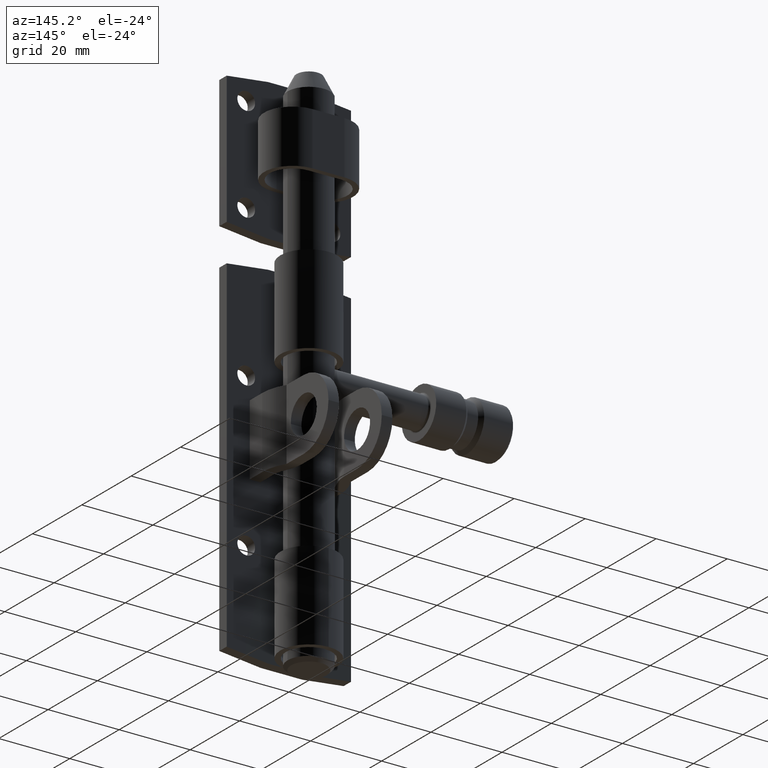
[diagram: clean part render]
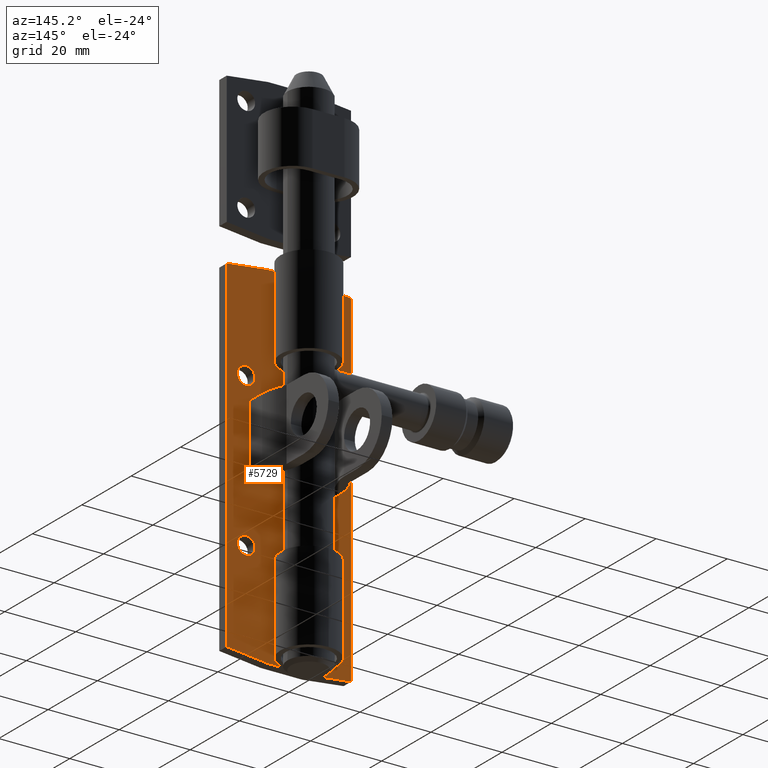
[diagram: same view with one face highlighted and labeled with its STEP entity id]
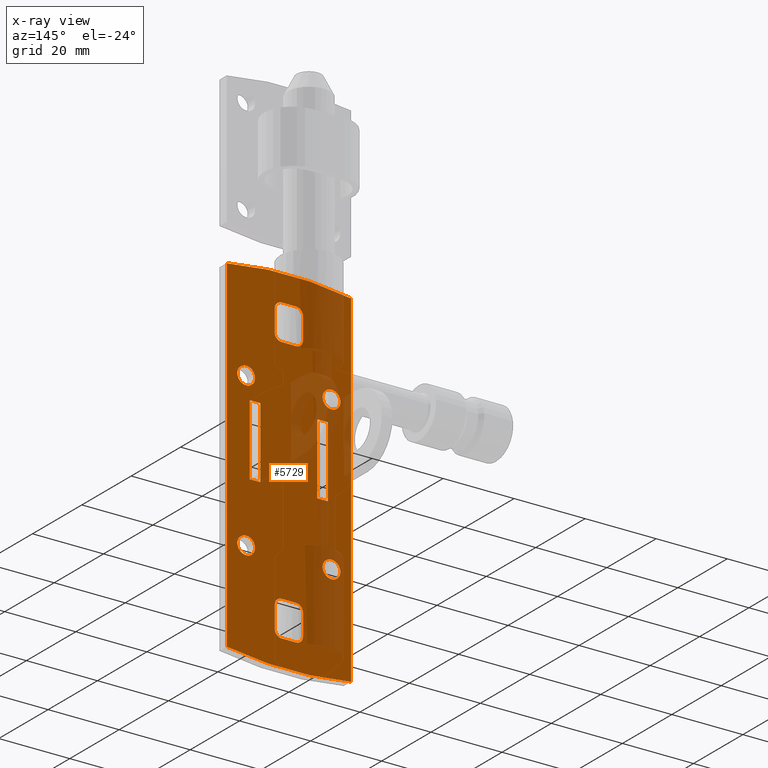
[diagram: x-ray of the same camera — body ghosted, the highlighted face saturated]
A machine part, auxiliary view. The second image highlights one B-rep face of the part: STEP entity #5729.
The next image is the same camera in x-ray: the body ghosted, the highlighted face saturated — about 24% of this face is hidden behind the body in this view.
In plain terms, the highlighted planar face has unit normal (0, -1, 0).
Its self-contained STEP definition (entity closure, byte-faithful):
#15 = FACE_BOUND ( 'NONE', #10693, .T. ) ;
#74 = DIRECTION ( 'NONE',  ( 0.000000000000000000, 1.000000000000000000, 0.000000000000000000 ) ) ;
#124 = DIRECTION ( 'NONE',  ( 0.000000000000000000, 0.000000000000000000, -1.000000000000000000 ) ) ;
#137 = EDGE_CURVE ( 'NONE', #7631, #14249, #5132, .T. ) ;
#179 = CARTESIAN_POINT ( 'NONE',  ( 11.00000000000000000, 6.245004513516503568E-16, -4.499999999999999112 ) ) ;
#214 = EDGE_CURVE ( 'NONE', #4328, #6896, #13978, .T. ) ;
#221 = DIRECTION ( 'NONE',  ( -0.000000000000000000, -1.000000000000000000, 0.000000000000000000 ) ) ;
#261 = EDGE_LOOP ( 'NONE', ( #7562 ) ) ;
#313 = ORIENTED_EDGE ( 'NONE', *, *, #7913, .F. ) ;
#386 = FACE_BOUND ( 'NONE', #6608, .T. ) ;
#401 = CARTESIAN_POINT ( 'NONE',  ( 11.00000000000000000, -2.151057110211241192E-15, 15.50000000000000178 ) ) ;
#413 = EDGE_CURVE ( 'NONE', #7470, #1226, #11636, .T. ) ;
#415 = EDGE_CURVE ( 'NONE', #13340, #6896, #13559, .T. ) ;
#509 = EDGE_CURVE ( 'NONE', #13071, #13973, #869, .T. ) ;
#568 = FACE_BOUND ( 'NONE', #14576, .T. ) ;
#588 = CARTESIAN_POINT ( 'NONE',  ( -12.00000000000000355, 0.000000000000000000, -18.99999999999999645 ) ) ;
#678 = CARTESIAN_POINT ( 'NONE',  ( -11.00000000000000000, 0.000000000000000000, -4.499999999999997335 ) ) ;
#710 = EDGE_CURVE ( 'NONE', #2548, #13071, #14469, .T. ) ;
#717 = ORIENTED_EDGE ( 'NONE', *, *, #214, .T. ) ;
#739 = VECTOR ( 'NONE', #9292, 1000.000000000000000 ) ;
#861 = CIRCLE ( 'NONE', #11522, 2.000000000000001776 ) ;
#869 = LINE ( 'NONE', #13337, #9509 ) ;
#913 = EDGE_LOOP ( 'NONE', ( #10696, #6861, #11272, #4243 ) ) ;
#1009 = EDGE_CURVE ( 'NONE', #5861, #4229, #5774, .T. ) ;
#1015 = CARTESIAN_POINT ( 'NONE',  ( 17.49999999999998579, 0.000000000000000000, -48.50000000000000000 ) ) ;
#1042 = VECTOR ( 'NONE', #7263, 1000.000000000000000 ) ;
#1197 = CARTESIAN_POINT ( 'NONE',  ( 2.000000000000000000, 0.000000000000000000, 40.49999999999999289 ) ) ;
#1226 = VERTEX_POINT ( 'NONE', #4517 ) ;
#1288 = LINE ( 'NONE', #14545, #2373 ) ;
#1408 = VERTEX_POINT ( 'NONE', #588 ) ;
#1486 = CARTESIAN_POINT ( 'NONE',  ( 4.000000000000000000, 0.000000000000000000, -40.49999999999999289 ) ) ;
#1547 = EDGE_CURVE ( 'NONE', #7603, #7603, #11221, .T. ) ;
#1552 = CARTESIAN_POINT ( 'NONE',  ( -1.999999999999999112, 0.000000000000000000, 34.50000000000000000 ) ) ;
#1612 = CIRCLE ( 'NONE', #6928, 102.8333333333333570 ) ;
#1657 = PLANE ( 'NONE',  #1825 ) ;
#1675 = ORIENTED_EDGE ( 'NONE', *, *, #6579, .T. ) ;
#1709 = AXIS2_PLACEMENT_3D ( 'NONE', #6218, #7493, #9754 ) ;
#1742 = CARTESIAN_POINT ( 'NONE',  ( 8.000000000000000000, 0.000000000000000000, 15.50000000000000000 ) ) ;
#1789 = ORIENTED_EDGE ( 'NONE', *, *, #7777, .F. ) ;
#1825 = AXIS2_PLACEMENT_3D ( 'NONE', #5046, #12936, #14190 ) ;
#1857 = ORIENTED_EDGE ( 'NONE', *, *, #137, .T. ) ;
#1910 = CARTESIAN_POINT ( 'NONE',  ( 4.000000000000000000, 0.000000000000000000, 40.49999999999999289 ) ) ;
#2022 = AXIS2_PLACEMENT_3D ( 'NONE', #4748, #3682, #9144 ) ;
#2054 = CARTESIAN_POINT ( 'NONE',  ( -1.999999999999999112, 0.000000000000000000, -32.50000000000000000 ) ) ;
#2111 = CIRCLE ( 'NONE', #9549, 102.8333333333333570 ) ;
#2182 = ORIENTED_EDGE ( 'NONE', *, *, #8677, .F. ) ;
#2373 = VECTOR ( 'NONE', #12354, 1000.000000000000000 ) ;
#2518 = VERTEX_POINT ( 'NONE', #7837 ) ;
#2548 = VERTEX_POINT ( 'NONE', #7983 ) ;
#2690 = FACE_BOUND ( 'NONE', #14377, .T. ) ;
#2730 = CARTESIAN_POINT ( 'NONE',  ( -11.99999999999997513, 0.000000000000000000, 21.50000000000000355 ) ) ;
#2748 = CARTESIAN_POINT ( 'NONE',  ( 17.49999999999995737, 0.000000000000000000, 48.49999999999998579 ) ) ;
#2811 = VECTOR ( 'NONE', #7614, 1000.000000000000000 ) ;
#2846 = VECTOR ( 'NONE', #8218, 1000.000000000000000 ) ;
#3008 = VECTOR ( 'NONE', #4920, 1000.000000000000000 ) ;
#3070 = AXIS2_PLACEMENT_3D ( 'NONE', #8553, #7363, #6182 ) ;
#3234 = CARTESIAN_POINT ( 'NONE',  ( -11.00000000000000000, 6.245004513516503568E-16, -4.499999999999999112 ) ) ;
#3313 = CARTESIAN_POINT ( 'NONE',  ( -1.999999999999999112, 0.000000000000000000, -34.50000000000000000 ) ) ;
#3320 = DIRECTION ( 'NONE',  ( -0.000000000000000000, -1.387778780781445676E-16, 1.000000000000000000 ) ) ;
#3451 = VERTEX_POINT ( 'NONE', #7236 ) ;
#3491 = CARTESIAN_POINT ( 'NONE',  ( -1.999999999999999112, 0.000000000000000000, 40.49999999999999289 ) ) ;
#3522 = CARTESIAN_POINT ( 'NONE',  ( 8.429652134130940764E-15, 0.000000000000000000, -52.83333333333337123 ) ) ;
#3682 = DIRECTION ( 'NONE',  ( -0.000000000000000000, -1.000000000000000000, 0.000000000000000000 ) ) ;
#3776 = DIRECTION ( 'NONE',  ( 0.000000000000000000, 0.000000000000000000, -1.000000000000000000 ) ) ;
#3802 = VERTEX_POINT ( 'NONE', #401 ) ;
#3856 = EDGE_CURVE ( 'NONE', #4068, #4068, #13141, .T. ) ;
#3939 = CARTESIAN_POINT ( 'NONE',  ( -11.00000000000000000, 0.000000000000000000, 15.50000000000000000 ) ) ;
#3970 = ORIENTED_EDGE ( 'NONE', *, *, #14615, .F. ) ;
#4026 = DIRECTION ( 'NONE',  ( -0.000000000000000000, -1.000000000000000000, 0.000000000000000000 ) ) ;
#4042 = EDGE_CURVE ( 'NONE', #12360, #12360, #5371, .T. ) ;
#4068 = VERTEX_POINT ( 'NONE', #9150 ) ;
#4229 = VERTEX_POINT ( 'NONE', #6153 ) ;
#4243 = ORIENTED_EDGE ( 'NONE', *, *, #12251, .T. ) ;
#4250 = DIRECTION ( 'NONE',  ( -1.000000000000000000, -0.000000000000000000, -0.000000000000000000 ) ) ;
#4328 = VERTEX_POINT ( 'NONE', #2054 ) ;
#4505 = CARTESIAN_POINT ( 'NONE',  ( 4.000000000000000000, 0.000000000000000000, -34.50000000000000000 ) ) ;
#4517 = CARTESIAN_POINT ( 'NONE',  ( 4.000000000000000000, 0.000000000000000000, 34.50000000000000000 ) ) ;
#4526 = ORIENTED_EDGE ( 'NONE', *, *, #6946, .F. ) ;
#4574 = LINE ( 'NONE', #13458, #10214 ) ;
#4616 = CARTESIAN_POINT ( 'NONE',  ( 2.000000000000000000, 0.000000000000000000, -34.50000000000000000 ) ) ;
#4748 = CARTESIAN_POINT ( 'NONE',  ( 2.000000000000000000, 0.000000000000000000, 34.50000000000000000 ) ) ;
#4759 = EDGE_CURVE ( 'NONE', #9510, #9603, #5677, .T. ) ;
#4795 = ORIENTED_EDGE ( 'NONE', *, *, #10069, .F. ) ;
#4826 = CARTESIAN_POINT ( 'NONE',  ( -3.999999999999999112, 0.000000000000000000, -34.50000000000000000 ) ) ;
#4908 = VECTOR ( 'NONE', #5910, 1000.000000000000000 ) ;
#4920 = DIRECTION ( 'NONE',  ( 1.000000000000000000, -0.000000000000000000, -0.000000000000000000 ) ) ;
#5034 = CARTESIAN_POINT ( 'NONE',  ( 17.49999999999998579, 0.000000000000000000, -48.50000000000000000 ) ) ;
#5046 = CARTESIAN_POINT ( 'NONE',  ( 8.429652134130940764E-15, 0.000000000000000000, 52.83333333333337123 ) ) ;
#5072 = CARTESIAN_POINT ( 'NONE',  ( -3.999999999999999112, 0.000000000000000000, 34.50000000000000000 ) ) ;
#5132 = CIRCLE ( 'NONE', #13304, 2.000000000000001776 ) ;
#5155 = ORIENTED_EDGE ( 'NONE', *, *, #4759, .T. ) ;
#5202 = ORIENTED_EDGE ( 'NONE', *, *, #1009, .T. ) ;
#5293 = VECTOR ( 'NONE', #8256, 1000.000000000000000 ) ;
#5360 = ORIENTED_EDGE ( 'NONE', *, *, #415, .F. ) ;
#5371 = CIRCLE ( 'NONE', #8526, 2.499999999999998668 ) ;
#5404 = VERTEX_POINT ( 'NONE', #14663 ) ;
#5591 = ORIENTED_EDGE ( 'NONE', *, *, #509, .T. ) ;
#5593 = CARTESIAN_POINT ( 'NONE',  ( 11.99999999999998934, 0.000000000000000000, 21.50000000000000000 ) ) ;
#5625 = CIRCLE ( 'NONE', #2022, 2.000000000000001776 ) ;
#5672 = AXIS2_PLACEMENT_3D ( 'NONE', #2730, #10449, #10592 ) ;
#5677 = CIRCLE ( 'NONE', #8040, 2.000000000000001776 ) ;
#5689 = VERTEX_POINT ( 'NONE', #678 ) ;
#5729 = ADVANCED_FACE ( 'NONE', ( #568, #6209, #386, #11863, #2690, #15, #14513, #11500, #8506 ), #1657, .F. ) ;
#5774 = LINE ( 'NONE', #14482, #7552 ) ;
#5818 = LINE ( 'NONE', #9612, #3008 ) ;
#5861 = VERTEX_POINT ( 'NONE', #13564 ) ;
#5910 = DIRECTION ( 'NONE',  ( 0.000000000000000000, 0.000000000000000000, 1.000000000000000000 ) ) ;
#5949 = CARTESIAN_POINT ( 'NONE',  ( -3.999999999999999112, 0.000000000000000000, -42.49999999999999289 ) ) ;
#5986 = CARTESIAN_POINT ( 'NONE',  ( 8.429652134130940764E-15, 0.000000000000000000, 52.83333333333337123 ) ) ;
#6016 = LINE ( 'NONE', #5949, #739 ) ;
#6078 = ORIENTED_EDGE ( 'NONE', *, *, #6289, .F. ) ;
#6153 = CARTESIAN_POINT ( 'NONE',  ( 11.00000000000000000, 0.000000000000000000, -4.499999999999997335 ) ) ;
#6182 = DIRECTION ( 'NONE',  ( 0.000000000000000000, 0.000000000000000000, 1.000000000000000000 ) ) ;
#6209 = FACE_OUTER_BOUND ( 'NONE', #913, .T. ) ;
#6218 = CARTESIAN_POINT ( 'NONE',  ( -1.999999999999999112, 0.000000000000000000, -40.49999999999999289 ) ) ;
#6223 = VERTEX_POINT ( 'NONE', #8372 ) ;
#6249 = VERTEX_POINT ( 'NONE', #2748 ) ;
#6289 = EDGE_CURVE ( 'NONE', #9510, #12371, #11487, .T. ) ;
#6313 = LINE ( 'NONE', #8706, #11970 ) ;
#6347 = CARTESIAN_POINT ( 'NONE',  ( 4.000000000000000000, 0.000000000000000000, 32.50000000000000000 ) ) ;
#6579 = EDGE_CURVE ( 'NONE', #13750, #1226, #5625, .T. ) ;
#6608 = EDGE_LOOP ( 'NONE', ( #1789 ) ) ;
#6695 = EDGE_LOOP ( 'NONE', ( #4526, #5202, #9394, #2182 ) ) ;
#6704 = DIRECTION ( 'NONE',  ( 0.000000000000000000, 0.000000000000000000, 1.000000000000000000 ) ) ;
#6766 = ORIENTED_EDGE ( 'NONE', *, *, #4042, .F. ) ;
#6787 = DIRECTION ( 'NONE',  ( 0.000000000000000000, 0.000000000000000000, 1.000000000000000000 ) ) ;
#6806 = DIRECTION ( 'NONE',  ( -0.000000000000000000, -1.000000000000000000, 0.000000000000000000 ) ) ;
#6861 = ORIENTED_EDGE ( 'NONE', *, *, #7459, .T. ) ;
#6870 = DIRECTION ( 'NONE',  ( 0.000000000000000000, 1.000000000000000000, 0.000000000000000000 ) ) ;
#6896 = VERTEX_POINT ( 'NONE', #4826 ) ;
#6927 = DIRECTION ( 'NONE',  ( 0.000000000000000000, 0.000000000000000000, -1.000000000000000000 ) ) ;
#6928 = AXIS2_PLACEMENT_3D ( 'NONE', #5986, #10410, #3776 ) ;
#6946 = EDGE_CURVE ( 'NONE', #5861, #7747, #13749, .T. ) ;
#6986 = AXIS2_PLACEMENT_3D ( 'NONE', #3313, #6806, #13451 ) ;
#7016 = ORIENTED_EDGE ( 'NONE', *, *, #7582, .F. ) ;
#7060 = CARTESIAN_POINT ( 'NONE',  ( -3.999999999999999112, 0.000000000000000000, 32.50000000000000000 ) ) ;
#7177 = CARTESIAN_POINT ( 'NONE',  ( 11.99999999999998934, 0.000000000000000000, 24.00000000000000000 ) ) ;
#7236 = CARTESIAN_POINT ( 'NONE',  ( -17.50000000000002132, 0.000000000000000000, 48.50000000000000000 ) ) ;
#7263 = DIRECTION ( 'NONE',  ( -0.000000000000000000, -1.387778780781445676E-16, 1.000000000000000000 ) ) ;
#7286 = DIRECTION ( 'NONE',  ( 0.000000000000000000, 0.000000000000000000, -1.000000000000000000 ) ) ;
#7363 = DIRECTION ( 'NONE',  ( 0.000000000000000000, 1.000000000000000000, 0.000000000000000000 ) ) ;
#7459 = EDGE_CURVE ( 'NONE', #5404, #3451, #6313, .T. ) ;
#7466 = ORIENTED_EDGE ( 'NONE', *, *, #413, .F. ) ;
#7468 = CARTESIAN_POINT ( 'NONE',  ( -3.999999999999999112, 0.000000000000000000, 40.49999999999999289 ) ) ;
#7470 = VERTEX_POINT ( 'NONE', #1910 ) ;
#7493 = DIRECTION ( 'NONE',  ( -0.000000000000000000, -1.000000000000000000, 0.000000000000000000 ) ) ;
#7501 = EDGE_CURVE ( 'NONE', #7470, #8835, #10515, .T. ) ;
#7552 = VECTOR ( 'NONE', #12045, 1000.000000000000000 ) ;
#7562 = ORIENTED_EDGE ( 'NONE', *, *, #3856, .F. ) ;
#7582 = EDGE_CURVE ( 'NONE', #4328, #14487, #1288, .T. ) ;
#7586 = CARTESIAN_POINT ( 'NONE',  ( -1.999999999999999112, 0.000000000000000000, 32.50000000000000000 ) ) ;
#7603 = VERTEX_POINT ( 'NONE', #13738 ) ;
#7614 = DIRECTION ( 'NONE',  ( 1.000000000000000000, 0.000000000000000000, 0.000000000000000000 ) ) ;
#7631 = VERTEX_POINT ( 'NONE', #12643 ) ;
#7673 = ORIENTED_EDGE ( 'NONE', *, *, #9323, .F. ) ;
#7747 = VERTEX_POINT ( 'NONE', #1742 ) ;
#7777 = EDGE_CURVE ( 'NONE', #1408, #1408, #7791, .T. ) ;
#7791 = CIRCLE ( 'NONE', #3070, 2.499999999999998668 ) ;
#7837 = CARTESIAN_POINT ( 'NONE',  ( -1.999999999999999112, 0.000000000000000000, 42.49999999999999289 ) ) ;
#7913 = EDGE_CURVE ( 'NONE', #2548, #5689, #10982, .T. ) ;
#7927 = VECTOR ( 'NONE', #11888, 1000.000000000000000 ) ;
#7970 = EDGE_CURVE ( 'NONE', #5689, #13973, #4574, .T. ) ;
#7983 = CARTESIAN_POINT ( 'NONE',  ( -8.000000000000000000, 0.000000000000000000, -4.499999999999997335 ) ) ;
#8040 = AXIS2_PLACEMENT_3D ( 'NONE', #1552, #11682, #7286 ) ;
#8125 = VECTOR ( 'NONE', #13944, 1000.000000000000000 ) ;
#8200 = LINE ( 'NONE', #7060, #12240 ) ;
#8218 = DIRECTION ( 'NONE',  ( 0.000000000000000000, 0.000000000000000000, 1.000000000000000000 ) ) ;
#8256 = DIRECTION ( 'NONE',  ( -0.000000000000000000, -0.000000000000000000, -1.000000000000000000 ) ) ;
#8372 = CARTESIAN_POINT ( 'NONE',  ( -1.999999999999999112, 0.000000000000000000, -42.49999999999999289 ) ) ;
#8506 = FACE_BOUND ( 'NONE', #8542, .T. ) ;
#8526 = AXIS2_PLACEMENT_3D ( 'NONE', #5593, #74, #6704 ) ;
#8542 = EDGE_LOOP ( 'NONE', ( #7673, #11056, #7016, #717, #5360, #11216, #3970, #1857 ) ) ;
#8548 = CARTESIAN_POINT ( 'NONE',  ( -8.000000000000000000, 6.245004513516503568E-16, -4.499999999999999112 ) ) ;
#8553 = CARTESIAN_POINT ( 'NONE',  ( -12.00000000000000355, 0.000000000000000000, -21.49999999999999645 ) ) ;
#8677 = EDGE_CURVE ( 'NONE', #7747, #3802, #5818, .T. ) ;
#8706 = CARTESIAN_POINT ( 'NONE',  ( -17.50000000000002132, 0.000000000000000000, -48.50000000000000000 ) ) ;
#8792 = CIRCLE ( 'NONE', #8958, 2.000000000000001776 ) ;
#8835 = VERTEX_POINT ( 'NONE', #8910 ) ;
#8910 = CARTESIAN_POINT ( 'NONE',  ( 2.000000000000000000, 0.000000000000000000, 42.49999999999999289 ) ) ;
#8958 = AXIS2_PLACEMENT_3D ( 'NONE', #4616, #13638, #124 ) ;
#8979 = EDGE_CURVE ( 'NONE', #4229, #3802, #14122, .T. ) ;
#8997 = VERTEX_POINT ( 'NONE', #4505 ) ;
#9144 = DIRECTION ( 'NONE',  ( 0.000000000000000000, 0.000000000000000000, -1.000000000000000000 ) ) ;
#9150 = CARTESIAN_POINT ( 'NONE',  ( -11.99999999999997513, 0.000000000000000000, 24.00000000000000355 ) ) ;
#9292 = DIRECTION ( 'NONE',  ( -1.000000000000000000, -0.000000000000000000, -0.000000000000000000 ) ) ;
#9323 = EDGE_CURVE ( 'NONE', #8997, #14249, #11091, .T. ) ;
#9381 = ORIENTED_EDGE ( 'NONE', *, *, #7970, .F. ) ;
#9394 = ORIENTED_EDGE ( 'NONE', *, *, #8979, .T. ) ;
#9440 = CARTESIAN_POINT ( 'NONE',  ( -3.999999999999999112, 0.000000000000000000, 32.50000000000000000 ) ) ;
#9503 = LINE ( 'NONE', #13223, #2811 ) ;
#9509 = VECTOR ( 'NONE', #14403, 1000.000000000000000 ) ;
#9510 = VERTEX_POINT ( 'NONE', #5072 ) ;
#9549 = AXIS2_PLACEMENT_3D ( 'NONE', #3522, #6870, #10399 ) ;
#9603 = VERTEX_POINT ( 'NONE', #7586 ) ;
#9612 = CARTESIAN_POINT ( 'NONE',  ( 11.00000000000000000, -2.151057110211241192E-15, 15.50000000000000178 ) ) ;
#9715 = EDGE_CURVE ( 'NONE', #8997, #14487, #8792, .T. ) ;
#9733 = CIRCLE ( 'NONE', #1709, 2.000000000000001776 ) ;
#9754 = DIRECTION ( 'NONE',  ( 0.000000000000000000, 0.000000000000000000, -1.000000000000000000 ) ) ;
#9941 = EDGE_CURVE ( 'NONE', #2518, #12371, #861, .T. ) ;
#10012 = DIRECTION ( 'NONE',  ( 0.000000000000000000, 1.000000000000000000, 0.000000000000000000 ) ) ;
#10069 = EDGE_CURVE ( 'NONE', #2518, #8835, #9503, .T. ) ;
#10214 = VECTOR ( 'NONE', #3320, 1000.000000000000000 ) ;
#10399 = DIRECTION ( 'NONE',  ( 0.000000000000000000, 0.000000000000000000, 1.000000000000000000 ) ) ;
#10410 = DIRECTION ( 'NONE',  ( 0.000000000000000000, 1.000000000000000000, -0.000000000000000000 ) ) ;
#10449 = DIRECTION ( 'NONE',  ( 0.000000000000000000, 1.000000000000000000, 0.000000000000000000 ) ) ;
#10515 = CIRCLE ( 'NONE', #13629, 2.000000000000001776 ) ;
#10592 = DIRECTION ( 'NONE',  ( 0.000000000000000000, 0.000000000000000000, 1.000000000000000000 ) ) ;
#10693 = EDGE_LOOP ( 'NONE', ( #13094 ) ) ;
#10696 = ORIENTED_EDGE ( 'NONE', *, *, #14228, .T. ) ;
#10982 = LINE ( 'NONE', #3234, #11668 ) ;
#11056 = ORIENTED_EDGE ( 'NONE', *, *, #9715, .T. ) ;
#11075 = ORIENTED_EDGE ( 'NONE', *, *, #13059, .F. ) ;
#11091 = LINE ( 'NONE', #12335, #13035 ) ;
#11140 = DIRECTION ( 'NONE',  ( -0.000000000000000000, -0.000000000000000000, -1.000000000000000000 ) ) ;
#11173 = DIRECTION ( 'NONE',  ( 0.000000000000000000, 0.000000000000000000, -1.000000000000000000 ) ) ;
#11216 = ORIENTED_EDGE ( 'NONE', *, *, #13448, .T. ) ;
#11221 = CIRCLE ( 'NONE', #12468, 2.499999999999998668 ) ;
#11266 = DIRECTION ( 'NONE',  ( -0.000000000000000000, -1.000000000000000000, 0.000000000000000000 ) ) ;
#11272 = ORIENTED_EDGE ( 'NONE', *, *, #13085, .T. ) ;
#11283 = LINE ( 'NONE', #5034, #5293 ) ;
#11407 = DIRECTION ( 'NONE',  ( 0.000000000000000000, 0.000000000000000000, -1.000000000000000000 ) ) ;
#11487 = LINE ( 'NONE', #9440, #2846 ) ;
#11500 = FACE_BOUND ( 'NONE', #6695, .T. ) ;
#11522 = AXIS2_PLACEMENT_3D ( 'NONE', #3491, #221, #11407 ) ;
#11536 = CARTESIAN_POINT ( 'NONE',  ( -3.999999999999999112, 0.000000000000000000, -42.49999999999999289 ) ) ;
#11551 = DIRECTION ( 'NONE',  ( -1.000000000000000000, -0.000000000000000000, -0.000000000000000000 ) ) ;
#11636 = LINE ( 'NONE', #6347, #7927 ) ;
#11668 = VECTOR ( 'NONE', #4250, 1000.000000000000000 ) ;
#11682 = DIRECTION ( 'NONE',  ( -0.000000000000000000, -1.000000000000000000, 0.000000000000000000 ) ) ;
#11863 = FACE_BOUND ( 'NONE', #261, .T. ) ;
#11888 = DIRECTION ( 'NONE',  ( -0.000000000000000000, -0.000000000000000000, -1.000000000000000000 ) ) ;
#11907 = VERTEX_POINT ( 'NONE', #1015 ) ;
#11970 = VECTOR ( 'NONE', #14254, 1000.000000000000000 ) ;
#11980 = ORIENTED_EDGE ( 'NONE', *, *, #9941, .T. ) ;
#12033 = EDGE_LOOP ( 'NONE', ( #9381, #313, #13957, #5591 ) ) ;
#12045 = DIRECTION ( 'NONE',  ( 1.000000000000000000, -0.000000000000000000, -0.000000000000000000 ) ) ;
#12062 = CARTESIAN_POINT ( 'NONE',  ( 2.000000000000000000, 0.000000000000000000, -32.50000000000000000 ) ) ;
#12240 = VECTOR ( 'NONE', #11551, 1000.000000000000000 ) ;
#12251 = EDGE_CURVE ( 'NONE', #6249, #11907, #11283, .T. ) ;
#12335 = CARTESIAN_POINT ( 'NONE',  ( 4.000000000000000000, 0.000000000000000000, -42.49999999999999289 ) ) ;
#12354 = DIRECTION ( 'NONE',  ( 1.000000000000000000, 0.000000000000000000, 0.000000000000000000 ) ) ;
#12360 = VERTEX_POINT ( 'NONE', #7177 ) ;
#12371 = VERTEX_POINT ( 'NONE', #7468 ) ;
#12468 = AXIS2_PLACEMENT_3D ( 'NONE', #14632, #10012, #6787 ) ;
#12486 = CARTESIAN_POINT ( 'NONE',  ( -8.000000000000000000, -2.151057110211241192E-15, 15.50000000000000178 ) ) ;
#12643 = CARTESIAN_POINT ( 'NONE',  ( 2.000000000000000000, 0.000000000000000000, -42.49999999999999289 ) ) ;
#12936 = DIRECTION ( 'NONE',  ( 0.000000000000000000, -1.000000000000000000, 0.000000000000000000 ) ) ;
#13011 = CARTESIAN_POINT ( 'NONE',  ( -3.999999999999999112, 0.000000000000000000, -40.49999999999999289 ) ) ;
#13035 = VECTOR ( 'NONE', #11140, 1000.000000000000000 ) ;
#13059 = EDGE_CURVE ( 'NONE', #13750, #9603, #8200, .T. ) ;
#13071 = VERTEX_POINT ( 'NONE', #12486 ) ;
#13085 = EDGE_CURVE ( 'NONE', #3451, #6249, #2111, .T. ) ;
#13094 = ORIENTED_EDGE ( 'NONE', *, *, #1547, .F. ) ;
#13103 = ORIENTED_EDGE ( 'NONE', *, *, #7501, .T. ) ;
#13141 = CIRCLE ( 'NONE', #5672, 2.499999999999998668 ) ;
#13223 = CARTESIAN_POINT ( 'NONE',  ( -3.999999999999999112, 0.000000000000000000, 42.49999999999999289 ) ) ;
#13304 = AXIS2_PLACEMENT_3D ( 'NONE', #13542, #11266, #11173 ) ;
#13337 = CARTESIAN_POINT ( 'NONE',  ( -11.00000000000000000, -2.151057110211241192E-15, 15.50000000000000178 ) ) ;
#13340 = VERTEX_POINT ( 'NONE', #13011 ) ;
#13448 = EDGE_CURVE ( 'NONE', #13340, #6223, #9733, .T. ) ;
#13451 = DIRECTION ( 'NONE',  ( 0.000000000000000000, 0.000000000000000000, -1.000000000000000000 ) ) ;
#13458 = CARTESIAN_POINT ( 'NONE',  ( -11.00000000000000000, 6.245004513516503568E-16, -4.499999999999999112 ) ) ;
#13542 = CARTESIAN_POINT ( 'NONE',  ( 2.000000000000000000, 0.000000000000000000, -40.49999999999999289 ) ) ;
#13559 = LINE ( 'NONE', #11536, #4908 ) ;
#13564 = CARTESIAN_POINT ( 'NONE',  ( 8.000000000000000000, 0.000000000000000000, -4.499999999999997335 ) ) ;
#13629 = AXIS2_PLACEMENT_3D ( 'NONE', #1197, #4026, #6927 ) ;
#13638 = DIRECTION ( 'NONE',  ( -0.000000000000000000, -1.000000000000000000, 0.000000000000000000 ) ) ;
#13722 = CARTESIAN_POINT ( 'NONE',  ( 2.000000000000000000, 0.000000000000000000, 32.50000000000000000 ) ) ;
#13736 = VECTOR ( 'NONE', #14222, 1000.000000000000000 ) ;
#13738 = CARTESIAN_POINT ( 'NONE',  ( 11.99999999999999645, 0.000000000000000000, -18.99999999999999645 ) ) ;
#13749 = LINE ( 'NONE', #14021, #1042 ) ;
#13750 = VERTEX_POINT ( 'NONE', #13722 ) ;
#13944 = DIRECTION ( 'NONE',  ( -0.000000000000000000, -1.387778780781445676E-16, 1.000000000000000000 ) ) ;
#13957 = ORIENTED_EDGE ( 'NONE', *, *, #710, .T. ) ;
#13973 = VERTEX_POINT ( 'NONE', #3939 ) ;
#13978 = CIRCLE ( 'NONE', #6986, 2.000000000000001776 ) ;
#14021 = CARTESIAN_POINT ( 'NONE',  ( 8.000000000000000000, 6.245004513516503568E-16, -4.499999999999999112 ) ) ;
#14122 = LINE ( 'NONE', #179, #8125 ) ;
#14190 = DIRECTION ( 'NONE',  ( 0.000000000000000000, -0.000000000000000000, -1.000000000000000000 ) ) ;
#14222 = DIRECTION ( 'NONE',  ( -0.000000000000000000, -1.387778780781445676E-16, 1.000000000000000000 ) ) ;
#14228 = EDGE_CURVE ( 'NONE', #11907, #5404, #1612, .T. ) ;
#14249 = VERTEX_POINT ( 'NONE', #1486 ) ;
#14254 = DIRECTION ( 'NONE',  ( 0.000000000000000000, 0.000000000000000000, 1.000000000000000000 ) ) ;
#14377 = EDGE_LOOP ( 'NONE', ( #6766 ) ) ;
#14403 = DIRECTION ( 'NONE',  ( -1.000000000000000000, -0.000000000000000000, -0.000000000000000000 ) ) ;
#14469 = LINE ( 'NONE', #8548, #13736 ) ;
#14482 = CARTESIAN_POINT ( 'NONE',  ( 11.00000000000000000, 6.245004513516503568E-16, -4.499999999999999112 ) ) ;
#14487 = VERTEX_POINT ( 'NONE', #12062 ) ;
#14513 = FACE_BOUND ( 'NONE', #12033, .T. ) ;
#14545 = CARTESIAN_POINT ( 'NONE',  ( -3.999999999999999112, 0.000000000000000000, -32.50000000000000000 ) ) ;
#14576 = EDGE_LOOP ( 'NONE', ( #11075, #1675, #7466, #13103, #4795, #11980, #6078, #5155 ) ) ;
#14615 = EDGE_CURVE ( 'NONE', #7631, #6223, #6016, .T. ) ;
#14632 = CARTESIAN_POINT ( 'NONE',  ( 11.99999999999999645, 0.000000000000000000, -21.49999999999999645 ) ) ;
#14663 = CARTESIAN_POINT ( 'NONE',  ( -17.50000000000002132, 0.000000000000000000, -48.50000000000000000 ) ) ;